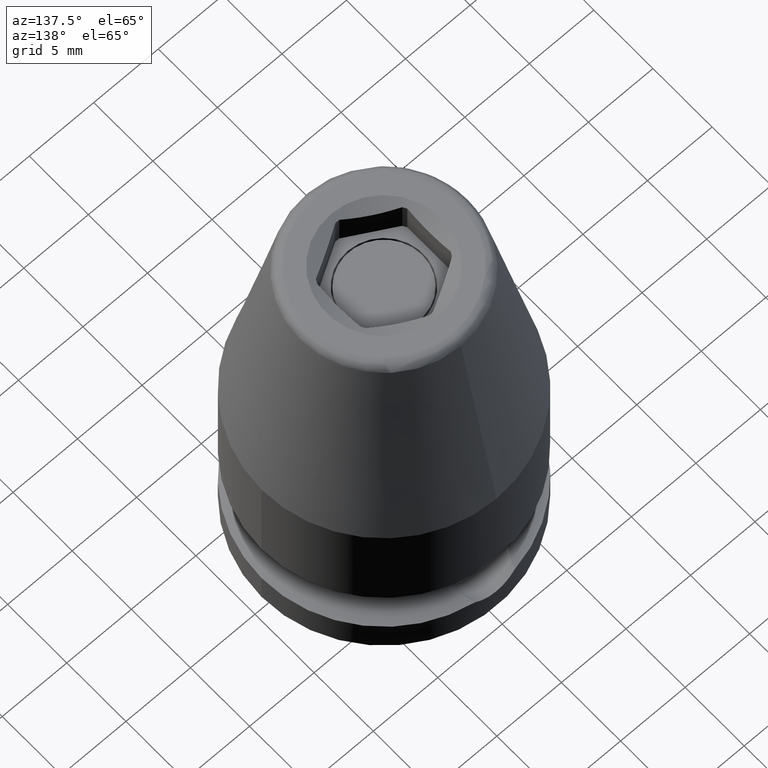
[diagram: clean part render]
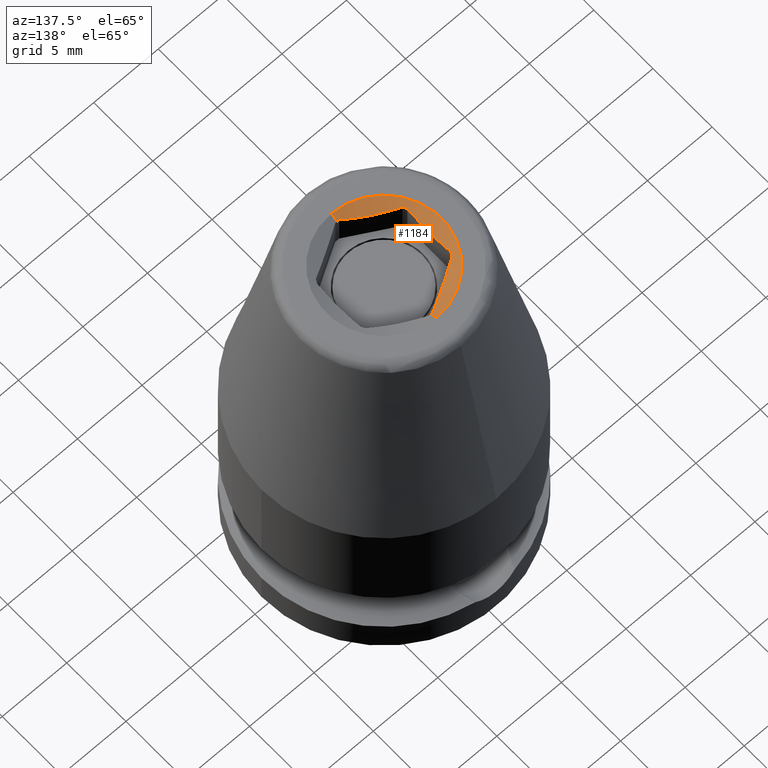
[diagram: same view with one face highlighted and labeled with its STEP entity id]
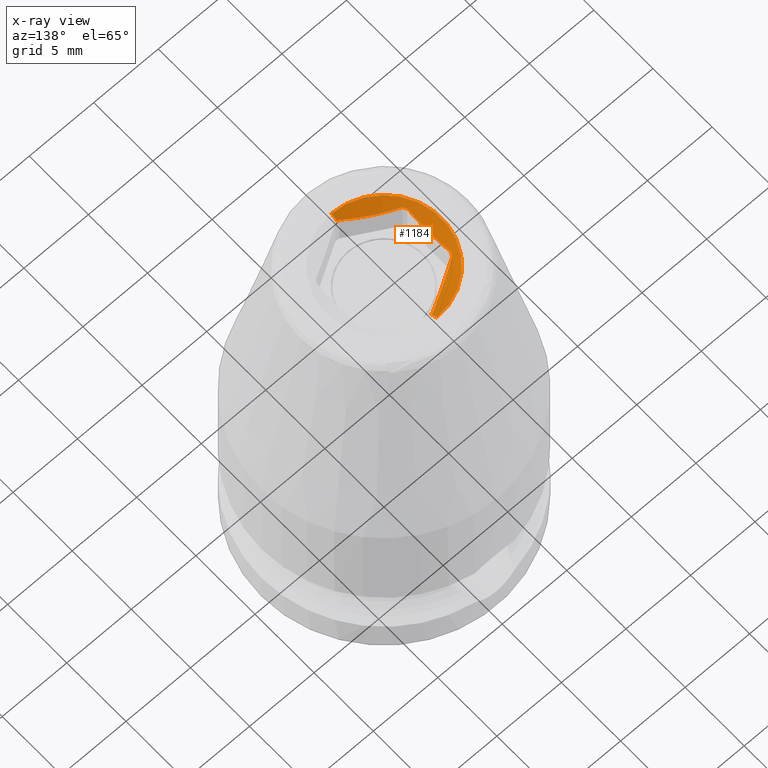
[diagram: x-ray of the same camera — body ghosted, the highlighted face saturated]
A machine part, auxiliary view. The second image highlights one B-rep face of the part: STEP entity #1184.
The next image is the same camera in x-ray: the body ghosted, the highlighted face saturated — about 0% of this face is hidden behind the body in this view.
In plain terms, the highlighted conical surface has half-angle 60 deg.
Its self-contained STEP definition (entity closure, byte-faithful):
#52=CARTESIAN_POINT('',(0.E0,0.E0,3.171421161675E1));
#53=DIRECTION('',(0.E0,0.E0,1.E0));
#54=DIRECTION('',(0.E0,1.E0,0.E0));
#55=AXIS2_PLACEMENT_3D('',#52,#53,#54);
#62=CARTESIAN_POINT('',(0.E0,0.E0,3.171421161675E1));
#63=DIRECTION('',(0.E0,0.E0,1.E0));
#64=DIRECTION('',(-3.919139298327E-2,-9.992317222327E-1,0.E0));
#65=AXIS2_PLACEMENT_3D('',#62,#63,#64);
#71=DIRECTION('',(0.E0,-8.660254037844E-1,5.E-1));
#72=VECTOR('',#71,5.715767664977E-1);
#73=CARTESIAN_POINT('',(0.E0,-3.955E0,3.171421161675E1));
#74=LINE('',#73,#72);
#75=DIRECTION('',(0.E0,8.660254037844E-1,5.E-1));
#76=VECTOR('',#75,5.715767664977E-1);
#77=CARTESIAN_POINT('',(0.E0,3.955E0,3.171421161675E1));
#78=LINE('',#77,#76);
#79=CARTESIAN_POINT('',(-3.5E0,-1.841745096369E0,3.171421161675E1));
#80=CARTESIAN_POINT('',(-3.5E0,-1.629288684679E0,3.165709108403E1));
#81=CARTESIAN_POINT('',(-3.5E0,-1.210138523168E0,3.156010495784E1));
#82=CARTESIAN_POINT('',(-3.5E0,-6.057601022963E-1,3.147195359004E1));
#83=CARTESIAN_POINT('',(-3.5E0,3.437950594209E-7,3.144129904613E1));
#84=CARTESIAN_POINT('',(-3.5E0,6.057613877250E-1,3.147195369105E1));
#85=CARTESIAN_POINT('',(-3.5E0,1.210140205378E0,3.156010529308E1));
#86=CARTESIAN_POINT('',(-3.5E0,1.629289379453E0,3.165709127082E1));
#87=CARTESIAN_POINT('',(-3.5E0,1.841745096369E0,3.171421161675E1));
#93=CARTESIAN_POINT('',(0.E0,0.E0,3.171421161675E1));
#94=DIRECTION('',(0.E0,0.E0,1.E0));
#95=DIRECTION('',(-8.457643592291E-1,5.335566030495E-1,0.E0));
#96=AXIS2_PLACEMENT_3D('',#93,#94,#95);
#102=CARTESIAN_POINT('',(-3.344998040751E0,2.110216365061E0,3.171421161675E1));
#103=CARTESIAN_POINT('',(-3.160893803344E0,2.216508996087E0,3.165705644162E1));
#104=CARTESIAN_POINT('',(-2.797750260379E0,2.426170018372E0,3.156003949767E1));
#105=CARTESIAN_POINT('',(-2.274207968091E0,2.728437301757E0,3.147191249653E1));
#106=CARTESIAN_POINT('',(-1.750000980972E0,3.031088346881E0,3.144131961344E1));
#107=CARTESIAN_POINT('',(-1.225792574547E0,3.333740211442E0,3.147191251533E1));
#108=CARTESIAN_POINT('',(-7.022554443301E-1,3.636004514503E0,3.156003830510E1));
#109=CARTESIAN_POINT('',(-3.391085528642E-1,3.845667470047E0,3.165705571013E1));
#110=CARTESIAN_POINT('',(-1.550019592488E-1,3.951961461430E0,3.171421161675E1));
#240=CARTESIAN_POINT('',(-1.550019592489E-1,-3.951961461430E0,
3.171421161675E1));
#241=CARTESIAN_POINT('',(-3.391067518797E-1,-3.845668509846E0,
3.165705626925E1));
#242=CARTESIAN_POINT('',(-7.022512338872E-1,-3.636006945404E0,
3.156003920437E1));
#243=CARTESIAN_POINT('',(-1.225791719383E0,-3.333740705171E0,3.147191252545E1));
#244=CARTESIAN_POINT('',(-1.750001439358E0,-3.031088082232E0,3.144131948841E1));
#245=CARTESIAN_POINT('',(-2.274213681654E0,-2.728434003030E0,3.147191298653E1));
#246=CARTESIAN_POINT('',(-2.797757026277E0,-2.426166112079E0,3.156004107921E1));
#247=CARTESIAN_POINT('',(-3.160896672671E0,-2.216507339480E0,3.165705733240E1));
#248=CARTESIAN_POINT('',(-3.344998040751E0,-2.110216365061E0,3.171421161675E1));
#254=CARTESIAN_POINT('',(0.E0,0.E0,3.171421161675E1));
#255=DIRECTION('',(0.E0,0.E0,1.E0));
#256=DIRECTION('',(-8.849557522124E-1,-4.656751191831E-1,0.E0));
#257=AXIS2_PLACEMENT_3D('',#254,#255,#256);
#304=CARTESIAN_POINT('',(0.E0,0.E0,3.2E1));
#305=DIRECTION('',(0.E0,0.E0,-1.E0));
#306=DIRECTION('',(0.E0,-1.E0,0.E0));
#307=AXIS2_PLACEMENT_3D('',#304,#305,#306);
#1044=VERTEX_POINT('',#79);
#1045=VERTEX_POINT('',#87);
#1046=CARTESIAN_POINT('',(-3.344998040751E0,-2.110216365061E0,
3.171421161675E1));
#1047=VERTEX_POINT('',#1046);
#1048=VERTEX_POINT('',#240);
#1049=CARTESIAN_POINT('',(0.E0,-3.955E0,3.171421161675E1));
#1051=VERTEX_POINT('',#1049);
#1060=CARTESIAN_POINT('',(0.E0,3.955E0,3.171421161675E1));
#1061=VERTEX_POINT('',#1060);
#1062=CARTESIAN_POINT('',(-1.550019592489E-1,3.951961461430E0,
3.171421161675E1));
#1063=VERTEX_POINT('',#1062);
#1064=VERTEX_POINT('',#102);
#1065=CARTESIAN_POINT('',(0.E0,4.45E0,3.2E1));
#1066=CARTESIAN_POINT('',(0.E0,-4.45E0,3.2E1));
#1067=VERTEX_POINT('',#1065);
#1068=VERTEX_POINT('',#1066);
#1161=CARTESIAN_POINT('',(0.E0,0.E0,3.172575862213E1));
#1162=DIRECTION('',(0.E0,0.E0,1.E0));
#1163=DIRECTION('',(0.E0,1.E0,0.E0));
#1164=AXIS2_PLACEMENT_3D('',#1161,#1162,#1163);
#1165=CONICAL_SURFACE('',#1164,3.974999999999E0,6.E1);
#1167=ORIENTED_EDGE('',*,*,#1166,.F.);
#1169=ORIENTED_EDGE('',*,*,#1168,.T.);
#1171=ORIENTED_EDGE('',*,*,#1170,.F.);
#1172=ORIENTED_EDGE('',*,*,#1150,.T.);
#1173=ORIENTED_EDGE('',*,*,#1139,.T.);
#1175=ORIENTED_EDGE('',*,*,#1174,.T.);
#1176=ORIENTED_EDGE('',*,*,#1135,.F.);
#1177=ORIENTED_EDGE('',*,*,#1112,.T.);
#1179=ORIENTED_EDGE('',*,*,#1178,.F.);
#1181=ORIENTED_EDGE('',*,*,#1180,.T.);
#1182=EDGE_LOOP('',(#1167,#1169,#1171,#1172,#1173,#1175,#1176,#1177,#1179,
#1181));
#1183=FACE_OUTER_BOUND('',#1182,.F.);
#1184=ADVANCED_FACE('',(#1183),#1165,.F.);
#56=CIRCLE('',#55,3.955E0);
#66=CIRCLE('',#65,3.955E0);
#88=B_SPLINE_CURVE_WITH_KNOTS('',3,(#79,#80,#81,#82,#83,#84,#85,#86,#87),
.UNSPECIFIED.,.F.,.F.,(4,1,1,1,1,1,4),(0.E0,1.666666666667E-1,3.333333333333E-1,
5.E-1,6.666666666667E-1,8.333333333333E-1,1.E0),.UNSPECIFIED.);
#97=CIRCLE('',#96,3.955E0);
#111=B_SPLINE_CURVE_WITH_KNOTS('',3,(#102,#103,#104,#105,#106,#107,#108,#109,
#110),.UNSPECIFIED.,.F.,.F.,(4,1,1,1,1,1,4),(0.E0,1.666666666667E-1,
3.333333333333E-1,5.E-1,6.666666666667E-1,8.333333333333E-1,1.E0),
.UNSPECIFIED.);
#249=B_SPLINE_CURVE_WITH_KNOTS('',3,(#240,#241,#242,#243,#244,#245,#246,#247,
#248),.UNSPECIFIED.,.F.,.F.,(4,1,1,1,1,1,4),(0.E0,1.666666666667E-1,
3.333333333333E-1,5.E-1,6.666666666667E-1,8.333333333333E-1,1.E0),
.UNSPECIFIED.);
#258=CIRCLE('',#257,3.955E0);
#308=CIRCLE('',#307,4.45E0);
#1112=EDGE_CURVE('',#1061,#1063,#56,.T.);
#1135=EDGE_CURVE('',#1061,#1067,#78,.T.);
#1139=EDGE_CURVE('',#1051,#1068,#74,.T.);
#1150=EDGE_CURVE('',#1048,#1051,#66,.T.);
#1166=EDGE_CURVE('',#1044,#1045,#88,.T.);
#1168=EDGE_CURVE('',#1044,#1047,#258,.T.);
#1170=EDGE_CURVE('',#1048,#1047,#249,.T.);
#1174=EDGE_CURVE('',#1068,#1067,#308,.T.);
#1178=EDGE_CURVE('',#1064,#1063,#111,.T.);
#1180=EDGE_CURVE('',#1064,#1045,#97,.T.);